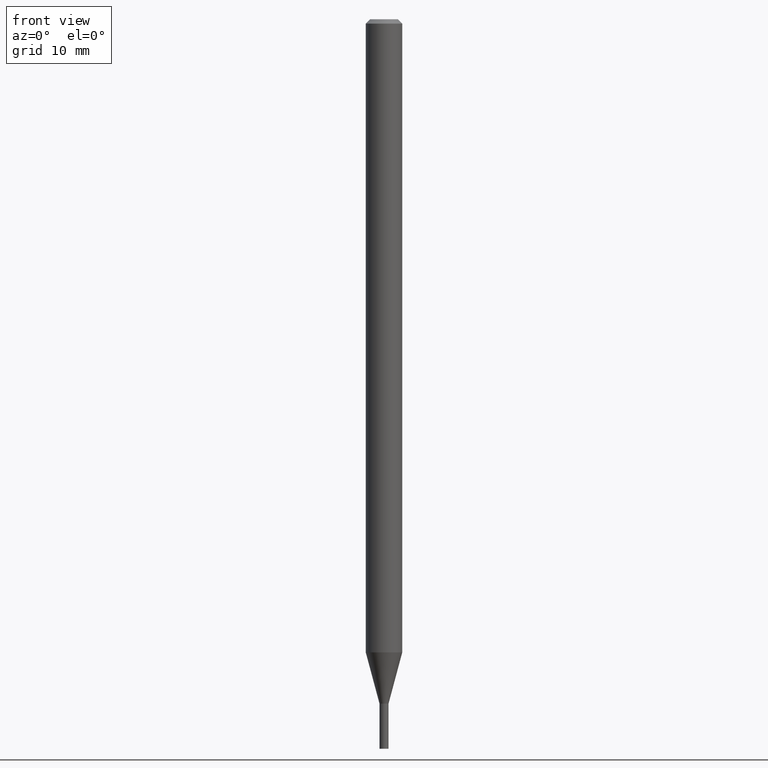
[diagram: clean part render]
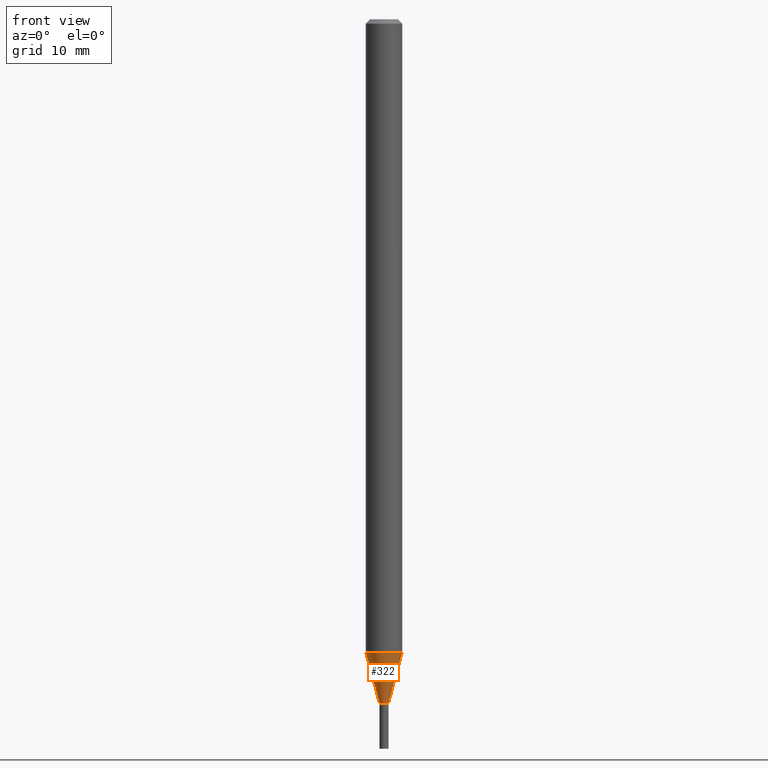
[diagram: same view with one face highlighted and labeled with its STEP entity id]
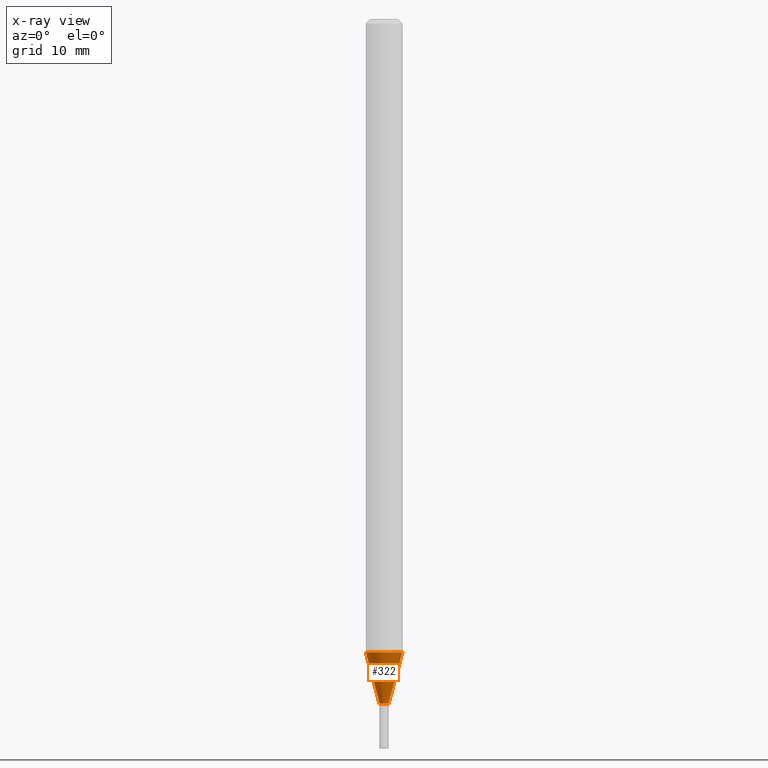
[diagram: x-ray of the same camera — body ghosted, the highlighted face saturated]
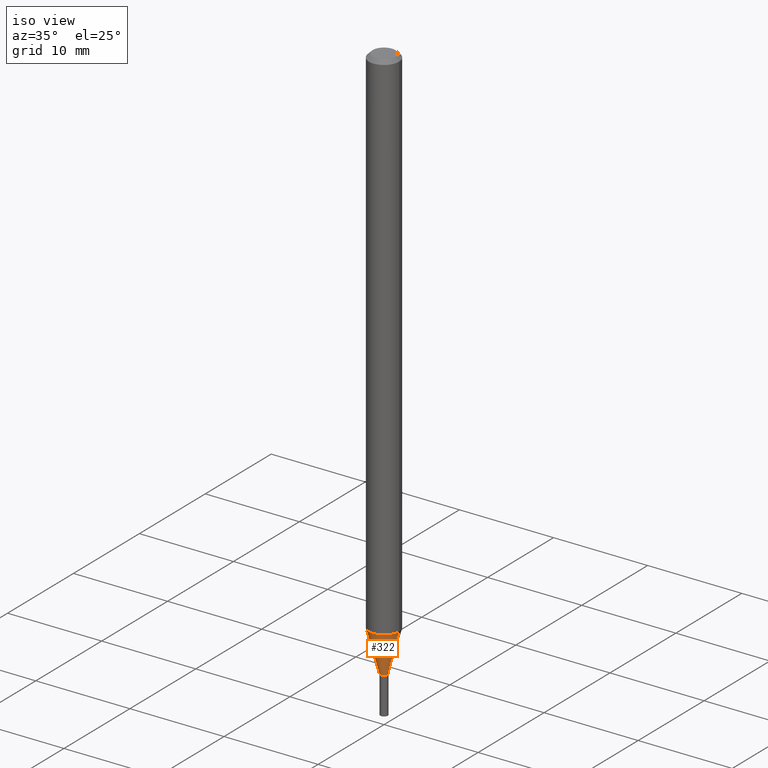
[diagram: same view with one face highlighted and labeled with its STEP entity id]
A machine part, front view. The second image highlights one B-rep face of the part: STEP entity #322.
The next image is the same camera in x-ray: the body ghosted, the highlighted face saturated — about 0% of this face is hidden behind the body in this view.
A second angle (iso view) of the same face is appended — the face is thin or edge-on in the first view.
In plain terms, the highlighted conical surface has half-angle 15 deg.
Its self-contained STEP definition (entity closure, byte-faithful):
#5 = ORIENTED_EDGE ( 'NONE', *, *, #402, .T. ) ;
#8 = EDGE_LOOP ( 'NONE', ( #44, #70, #5, #215 ) ) ;
#34 = VERTEX_POINT ( 'NONE', #376 ) ;
#44 = ORIENTED_EDGE ( 'NONE', *, *, #277, .F. ) ;
#70 = ORIENTED_EDGE ( 'NONE', *, *, #465, .T. ) ;
#98 = EDGE_CURVE ( 'NONE', #184, #34, #350, .T. ) ;
#125 = CARTESIAN_POINT ( 'NONE',  ( -0.01549999999999964947, -8.077389615544363883E-15, -2.345000000000000195 ) ) ;
#127 = CARTESIAN_POINT ( 'NONE',  ( 5.734624350504145902E-29, -8.187523739587176748E-15, -2.345000000000000195 ) ) ;
#134 = AXIS2_PLACEMENT_3D ( 'NONE', #306, #228, #409 ) ;
#135 = CIRCLE ( 'NONE', #183, 0.01549999999999964947 ) ;
#183 = AXIS2_PLACEMENT_3D ( 'NONE', #127, #463, #247 ) ;
#184 = VERTEX_POINT ( 'NONE', #268 ) ;
#215 = ORIENTED_EDGE ( 'NONE', *, *, #98, .F. ) ;
#223 = VECTOR ( 'NONE', #388, 39.37007874015748143 ) ;
#228 = DIRECTION ( 'NONE',  ( -2.445468806185136597E-29, 3.491481338843145583E-15, 1.000000000000000000 ) ) ;
#242 = CARTESIAN_POINT ( 'NONE',  ( 0.01549999999999964947, -8.295759661091311547E-15, -2.345000000000000195 ) ) ;
#247 = DIRECTION ( 'NONE',  ( 1.000000000000000000, -6.982962677686271444E-15, 0.000000000000000000 ) ) ;
#268 = CARTESIAN_POINT ( 'NONE',  ( -0.06249999999999997918, -7.131006399475775641E-15, -2.169593612044262265 ) ) ;
#277 = EDGE_CURVE ( 'NONE', #460, #184, #320, .T. ) ;
#283 = VECTOR ( 'NONE', #357, 39.37007874015748143 ) ;
#284 = CARTESIAN_POINT ( 'NONE',  ( -0.01549999999999964947, -7.604198007510069762E-15, -2.345000000000000195 ) ) ;
#291 = CONICAL_SURFACE ( 'NONE', #433, 0.01549999999999964947, 0.2617993877991502405 ) ;
#301 = FACE_OUTER_BOUND ( 'NONE', #8, .T. ) ;
#306 = CARTESIAN_POINT ( 'NONE',  ( 5.305673500352780088E-29, -7.575095609325836680E-15, -2.169593612044262265 ) ) ;
#320 = LINE ( 'NONE', #125, #223 ) ;
#322 = ADVANCED_FACE ( 'NONE', ( #301 ), #291, .T. ) ;
#350 = CIRCLE ( 'NONE', #134, 0.06250000000000000000 ) ;
#354 = CARTESIAN_POINT ( 'NONE',  ( 0.01549999999999964947, -8.295759661091311547E-15, -2.345000000000000195 ) ) ;
#357 = DIRECTION ( 'NONE',  ( 0.2588190451025215166, 1.565188264969620784E-15, 0.9659258262890679791 ) ) ;
#373 = CARTESIAN_POINT ( 'NONE',  ( 5.734624350504145902E-29, -8.187523739587176748E-15, -2.345000000000000195 ) ) ;
#376 = CARTESIAN_POINT ( 'NONE',  ( 0.06249999999999997918, -8.011530776681228349E-15, -2.169593612044262265 ) ) ;
#388 = DIRECTION ( 'NONE',  ( -0.2588190451025215166, 5.211531920934551042E-15, 0.9659258262890679791 ) ) ;
#394 = LINE ( 'NONE', #354, #283 ) ;
#402 = EDGE_CURVE ( 'NONE', #437, #34, #394, .T. ) ;
#403 = DIRECTION ( 'NONE',  ( -2.445468806185136597E-29, 3.491481338843145583E-15, 1.000000000000000000 ) ) ;
#409 = DIRECTION ( 'NONE',  ( 1.000000000000000000, -6.982962677686262766E-15, 0.000000000000000000 ) ) ;
#433 = AXIS2_PLACEMENT_3D ( 'NONE', #373, #403, #441 ) ;
#437 = VERTEX_POINT ( 'NONE', #242 ) ;
#441 = DIRECTION ( 'NONE',  ( 1.000000000000000000, -6.982962677686271444E-15, 0.000000000000000000 ) ) ;
#460 = VERTEX_POINT ( 'NONE', #284 ) ;
#463 = DIRECTION ( 'NONE',  ( -2.445468806185136597E-29, 3.491481338843145583E-15, 1.000000000000000000 ) ) ;
#465 = EDGE_CURVE ( 'NONE', #460, #437, #135, .T. ) ;